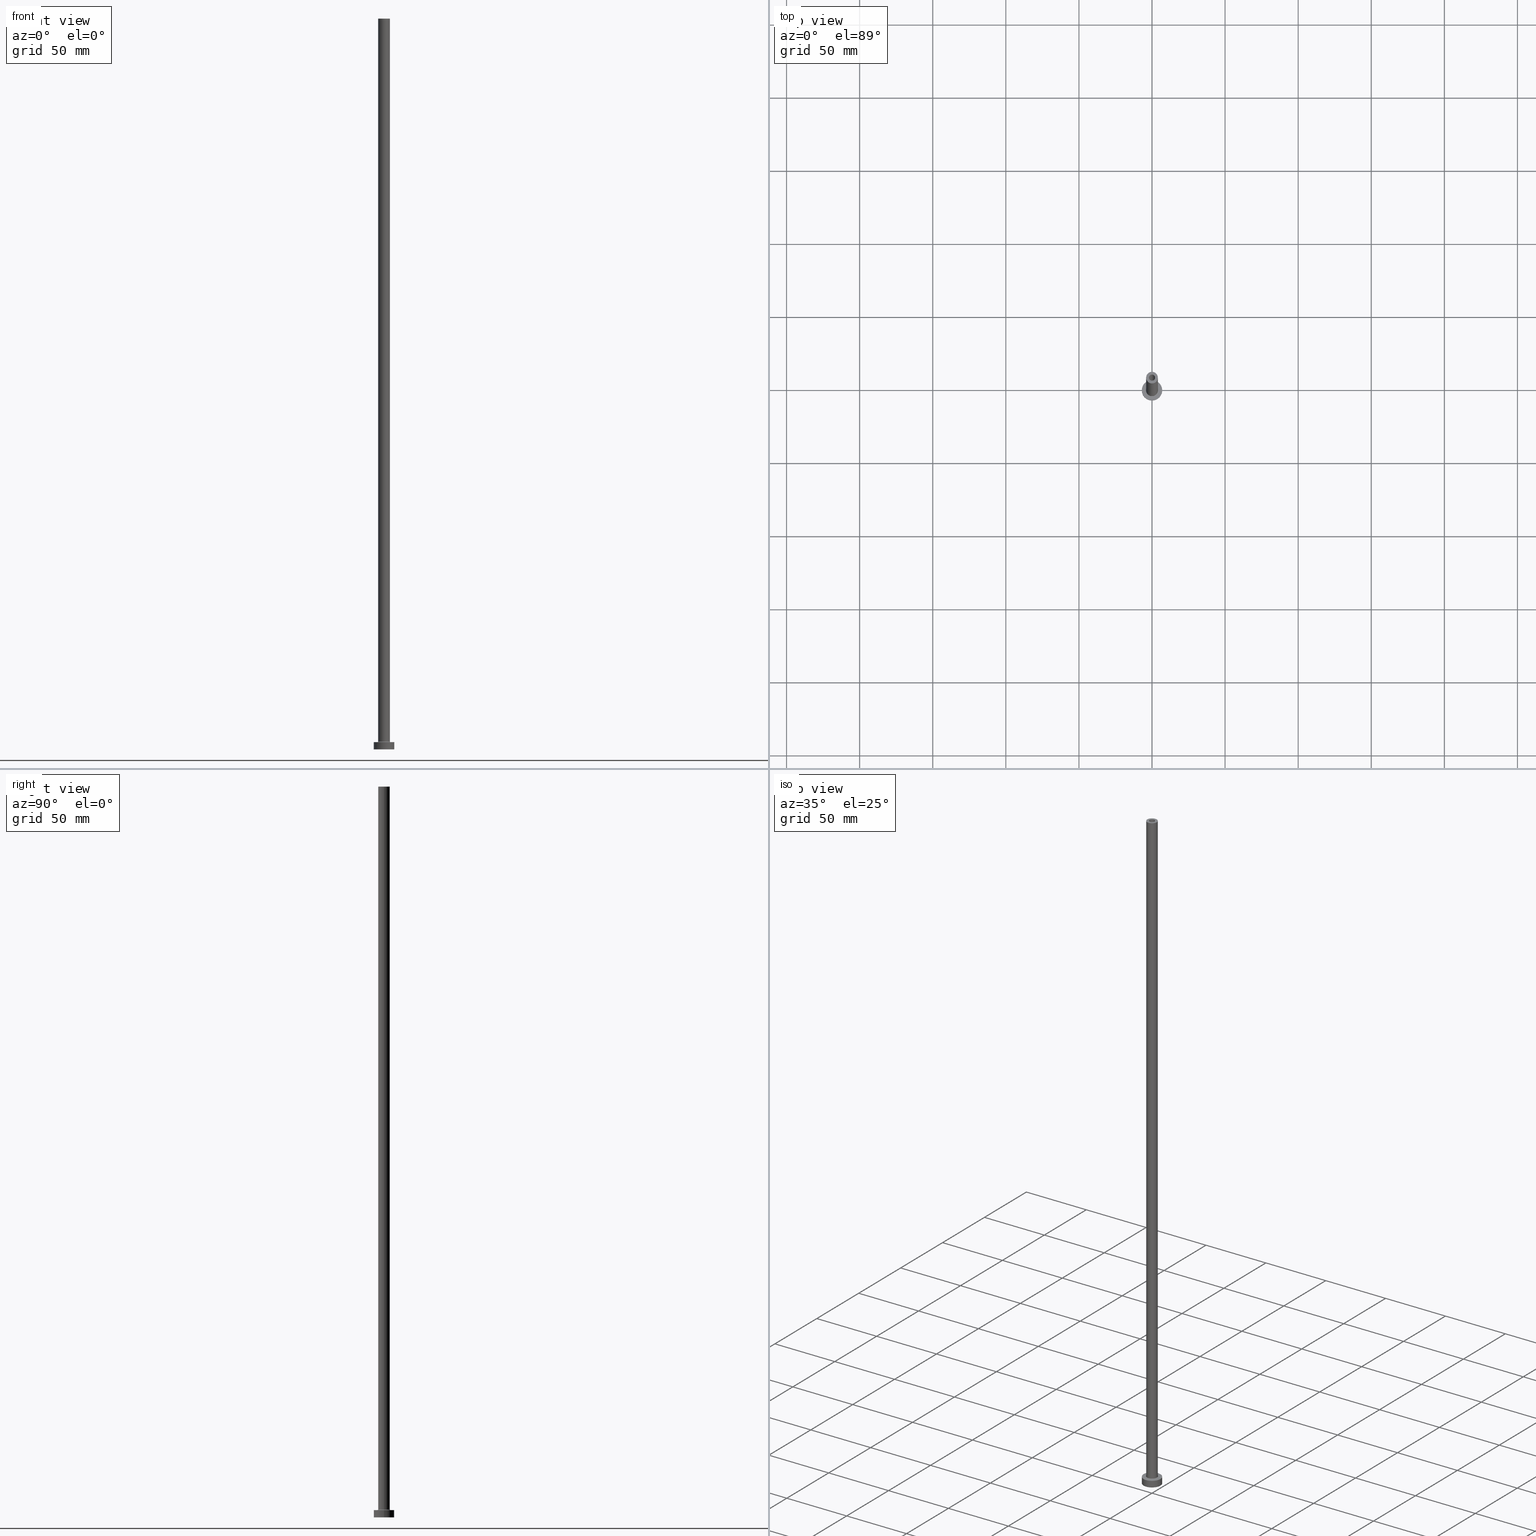
[diagram: canonical four-view strip — front | top / right | iso, engineering-drawing reading convention]
A machine part, canonical four-view strip (front | top / right | iso — engineering-drawing reading convention). The complete STEP part file that produces these views, byte-faithful:
ISO-10303-21;
HEADER;
FILE_DESCRIPTION (( 'STEP AP203' ),
    '1' );
FILE_NAME ('7f9c.STEP',
    '2023-02-13T17:30:37',
    ( '' ),
    ( '' ),
    'SwSTEP 2.0',
    'SolidWorks 2019',
    '' );
FILE_SCHEMA (( 'CONFIG_CONTROL_DESIGN' ));
ENDSEC;

DATA;
#1 = ORIENTED_EDGE ( 'NONE', *, *, #434, .T. ) ;
#2 = ORIENTED_EDGE ( 'NONE', *, *, #376, .T. ) ;
#3 = CIRCLE ( 'NONE', #222, 2.100000000000000089 ) ;
#4 = CARTESIAN_POINT ( 'NONE',  ( 0.000000000000000000, 0.000000000000000000, 500.0000000000000000 ) ) ;
#5 = LINE ( 'NONE', #150, #145 ) ;
#6 = ORIENTED_EDGE ( 'NONE', *, *, #351, .T. ) ;
#7 = DATE_AND_TIME ( #109, #340 ) ;
#8 = ADVANCED_FACE ( 'NONE', ( #38 ), #97, .F. ) ;
#9 = AXIS2_PLACEMENT_3D ( 'NONE', #298, #164, #301 ) ;
#10 = FACE_OUTER_BOUND ( 'NONE', #316, .T. ) ;
#11 = CIRCLE ( 'NONE', #80, 2.250000000000000000 ) ;
#12 = UNCERTAINTY_MEASURE_WITH_UNIT (LENGTH_MEASURE( 1.000000000000000082E-05 ), #57, 'distance_accuracy_value', 'NONE');
#13 = DIRECTION ( 'NONE',  ( 1.000000000000000000, 0.000000000000000000, -0.000000000000000000 ) ) ;
#14 = EDGE_CURVE ( 'NONE', #32, #75, #3, .T. ) ;
#15 = DIRECTION ( 'NONE',  ( -1.000000000000000000, 0.000000000000000000, 0.000000000000000000 ) ) ;
#16 = CARTESIAN_POINT ( 'NONE',  ( 0.000000000000000000, 0.000000000000000000, 5.000000000000000000 ) ) ;
#17 = CARTESIAN_POINT ( 'NONE',  ( 0.000000000000000000, 0.000000000000000000, 500.0000000000000000 ) ) ;
#18 = CIRCLE ( 'NONE', #105, 7.000000000000000000 ) ;
#19 = CARTESIAN_POINT ( 'NONE',  ( 0.000000000000000000, 0.000000000000000000, 455.0000000000000000 ) ) ;
#20 = CARTESIAN_POINT ( 'NONE',  ( 0.000000000000000000, 0.000000000000000000, 5.000000000000000000 ) ) ;
#21 = VERTEX_POINT ( 'NONE', #214 ) ;
#22 = DIRECTION ( 'NONE',  ( -0.000000000000000000, -0.000000000000000000, -1.000000000000000000 ) ) ;
#23 = PERSON_AND_ORGANIZATION_ROLE ( 'design_supplier' ) ;
#24 = CC_DESIGN_PERSON_AND_ORGANIZATION_ASSIGNMENT ( #42, #331, ( #102 ) ) ;
#25 = CARTESIAN_POINT ( 'NONE',  ( 0.000000000000000000, 0.000000000000000000, 500.0000000000000000 ) ) ;
#26 = DIRECTION ( 'NONE',  ( 1.000000000000000000, 0.000000000000000000, 0.000000000000000000 ) ) ;
#27 = ORIENTED_EDGE ( 'NONE', *, *, #450, .F. ) ;
#28 = AXIS2_PLACEMENT_3D ( 'NONE', #130, #344, #121 ) ;
#29 = CARTESIAN_POINT ( 'NONE',  ( 7.000000000000000000, 8.572527594031473190E-16, 5.000000000000000000 ) ) ;
#30 = EDGE_LOOP ( 'NONE', ( #133, #178, #136, #363 ) ) ;
#31 = DIRECTION ( 'NONE',  ( 0.000000000000000000, 0.000000000000000000, -1.000000000000000000 ) ) ;
#32 = VERTEX_POINT ( 'NONE', #408 ) ;
#33 = DIRECTION ( 'NONE',  ( -0.000000000000000000, -0.000000000000000000, -1.000000000000000000 ) ) ;
#34 = AXIS2_PLACEMENT_3D ( 'NONE', #368, #81, #329 ) ;
#35 = VERTEX_POINT ( 'NONE', #336 ) ;
#36 = DIRECTION ( 'NONE',  ( 1.000000000000000000, 0.000000000000000000, -0.000000000000000000 ) ) ;
#37 = EDGE_LOOP ( 'NONE', ( #394, #360, #6, #424 ) ) ;
#38 = FACE_OUTER_BOUND ( 'NONE', #275, .T. ) ;
#39 = CARTESIAN_POINT ( 'NONE',  ( 0.000000000000000000, 0.000000000000000000, 0.000000000000000000 ) ) ;
#40 = ADVANCED_FACE ( 'NONE', ( #257, #10 ), #82, .F. ) ;
#41 = EDGE_LOOP ( 'NONE', ( #165, #67, #358, #455 ) ) ;
#42 = PERSON_AND_ORGANIZATION ( #390, #288 ) ;
#43 = EDGE_CURVE ( 'NONE', #32, #432, #297, .T. ) ;
#44 = DATE_AND_TIME ( #436, #294 ) ;
#45 = VECTOR ( 'NONE', #277, 1000.000000000000000 ) ;
#46 = AXIS2_PLACEMENT_3D ( 'NONE', #237, #415, #91 ) ;
#47 = DIRECTION ( 'NONE',  ( 0.000000000000000000, 0.000000000000000000, 1.000000000000000000 ) ) ;
#48 = AXIS2_PLACEMENT_3D ( 'NONE', #274, #66, #139 ) ;
#49 = CARTESIAN_POINT ( 'NONE',  ( 2.100000000000000089, 2.571758278209441464E-16, 500.0000000000000000 ) ) ;
#50 = ORIENTED_EDGE ( 'NONE', *, *, #314, .T. ) ;
#51 = SECURITY_CLASSIFICATION_LEVEL ( 'unclassified' ) ;
#52 = CARTESIAN_POINT ( 'NONE',  ( 4.500000000000000888, 0.000000000000000000, 5.000000000000002665 ) ) ;
#53 = CALENDAR_DATE ( 2023, 13, 2 ) ;
#54 = VECTOR ( 'NONE', #262, 1000.000000000000000 ) ;
#55 = CARTESIAN_POINT ( 'NONE',  ( 0.000000000000000000, 0.000000000000000000, 5.500000000000005329 ) ) ;
#56 = VECTOR ( 'NONE', #88, 1000.000000000000000 ) ;
#57 =( LENGTH_UNIT ( ) NAMED_UNIT ( * ) SI_UNIT ( .MILLI., .METRE. ) );
#58 = DIRECTION ( 'NONE',  ( 1.000000000000000000, 0.000000000000000000, 0.000000000000000000 ) ) ;
#59 = ORIENTED_EDGE ( 'NONE', *, *, #225, .F. ) ;
#60 = EDGE_CURVE ( 'NONE', #398, #432, #111, .T. ) ;
#61 = CARTESIAN_POINT ( 'NONE',  ( 2.250000000000000000, 2.755455298081544285E-16, 461.3639610306789223 ) ) ;
#62 = CARTESIAN_POINT ( 'NONE',  ( 2.250000000000000000, 2.755455298081544285E-16, 0.000000000000000000 ) ) ;
#63 = CARTESIAN_POINT ( 'NONE',  ( 4.000000000000000000, 4.898587196589412829E-16, 500.0000000000000000 ) ) ;
#64 = CIRCLE ( 'NONE', #433, 7.000000000000000000 ) ;
#65 =( NAMED_UNIT ( * ) SI_UNIT ( $, .STERADIAN. ) SOLID_ANGLE_UNIT ( ) );
#66 = DIRECTION ( 'NONE',  ( -0.000000000000000000, -0.000000000000000000, -1.000000000000000000 ) ) ;
#67 = ORIENTED_EDGE ( 'NONE', *, *, #305, .T. ) ;
#68 = DIRECTION ( 'NONE',  ( 1.000000000000000000, 0.000000000000000000, 0.000000000000000000 ) ) ;
#69 = DIRECTION ( 'NONE',  ( 1.000000000000000000, 0.000000000000000000, 0.000000000000000000 ) ) ;
#70 = DIRECTION ( 'NONE',  ( 0.000000000000000000, 0.000000000000000000, 1.000000000000000000 ) ) ;
#71 = EDGE_LOOP ( 'NONE', ( #95, #361, #211, #403 ) ) ;
#72 = ORIENTED_EDGE ( 'NONE', *, *, #434, .F. ) ;
#73 = CC_DESIGN_APPROVAL ( #438, ( #102 ) ) ;
#74 = CARTESIAN_POINT ( 'NONE',  ( 0.000000000000000000, 0.000000000000000000, 461.3639610306789223 ) ) ;
#75 = VERTEX_POINT ( 'NONE', #49 ) ;
#76 = EDGE_CURVE ( 'NONE', #345, #391, #198, .T. ) ;
#77 = ORIENTED_EDGE ( 'NONE', *, *, #76, .T. ) ;
#78 = APPROVAL_ROLE ( '' ) ;
#79 = EDGE_CURVE ( 'NONE', #75, #398, #5, .T. ) ;
#80 = AXIS2_PLACEMENT_3D ( 'NONE', #380, #273, #271 ) ;
#81 = DIRECTION ( 'NONE',  ( 0.000000000000000000, 0.000000000000000000, 1.000000000000000000 ) ) ;
#82 = PLANE ( 'NONE',  #256 ) ;
#83 = LOCAL_TIME ( 18, 30, 37.00000000000000000, #221 ) ;
#84 = FACE_OUTER_BOUND ( 'NONE', #71, .T. ) ;
#85 = DIRECTION ( 'NONE',  ( 0.000000000000000000, -1.000000000000000000, 0.000000000000000000 ) ) ;
#86 = CARTESIAN_POINT ( 'NONE',  ( 0.000000000000000000, 0.000000000000000000, 0.000000000000000000 ) ) ;
#87 = EDGE_CURVE ( 'NONE', #21, #243, #153, .T. ) ;
#88 = DIRECTION ( 'NONE',  ( -0.000000000000000000, -0.000000000000000000, -1.000000000000000000 ) ) ;
#89 = DIRECTION ( 'NONE',  ( 1.000000000000000000, 0.000000000000000000, 0.000000000000000000 ) ) ;
#90 = DIRECTION ( 'NONE',  ( 0.000000000000000000, 0.000000000000000000, 1.000000000000000000 ) ) ;
#91 = DIRECTION ( 'NONE',  ( -1.000000000000000000, 0.000000000000000000, 0.000000000000000000 ) ) ;
#92 = ORIENTED_EDGE ( 'NONE', *, *, #60, .F. ) ;
#93 = DIRECTION ( 'NONE',  ( 0.000000000000000000, 0.000000000000000000, -1.000000000000000000 ) ) ;
#94 = CARTESIAN_POINT ( 'NONE',  ( -4.000000000000000000, 0.000000000000000000, 500.0000000000000000 ) ) ;
#95 = ORIENTED_EDGE ( 'NONE', *, *, #291, .F. ) ;
#96 = PLANE ( 'NONE',  #359 ) ;
#97 = CYLINDRICAL_SURFACE ( 'NONE', #422, 2.100000000000000089 ) ;
#98 = FACE_OUTER_BOUND ( 'NONE', #411, .T. ) ;
#99 = ORIENTED_EDGE ( 'NONE', *, *, #396, .F. ) ;
#100 = ADVANCED_BREP_SHAPE_REPRESENTATION ( '7f9c', ( #292, #406 ), #106 ) ;
#101 = CARTESIAN_POINT ( 'NONE',  ( 0.000000000000000000, 0.000000000000000000, 500.0000000000000000 ) ) ;
#102 = PRODUCT_DEFINITION ( 'NEZN�M�', '', #371, #208 ) ;
#103 = EDGE_LOOP ( 'NONE', ( #364, #355 ) ) ;
#104 = ORIENTED_EDGE ( 'NONE', *, *, #60, .T. ) ;
#105 = AXIS2_PLACEMENT_3D ( 'NONE', #16, #267, #375 ) ;
#106 =( GEOMETRIC_REPRESENTATION_CONTEXT ( 3 ) GLOBAL_UNCERTAINTY_ASSIGNED_CONTEXT ( ( #12 ) ) GLOBAL_UNIT_ASSIGNED_CONTEXT ( ( #57, #202, #65 ) ) REPRESENTATION_CONTEXT ( 'NONE', 'WORKASPACE' ) );
#107 = ORIENTED_EDGE ( 'NONE', *, *, #412, .T. ) ;
#108 = EDGE_LOOP ( 'NONE', ( #72, #321, #59, #176 ) ) ;
#109 = CALENDAR_DATE ( 2023, 13, 2 ) ;
#110 = APPROVAL ( #158, 'NEUR�EN�' ) ;
#111 = CIRCLE ( 'NONE', #285, 2.100000000000000089 ) ;
#112 = APPROVAL_ROLE ( '' ) ;
#113 = AXIS2_PLACEMENT_3D ( 'NONE', #240, #272, #384 ) ;
#114 = PERSON_AND_ORGANIZATION ( #390, #288 ) ;
#115 = EDGE_CURVE ( 'NONE', #179, #326, #457, .T. ) ;
#116 = AXIS2_PLACEMENT_3D ( 'NONE', #337, #85, #171 ) ;
#117 = AXIS2_PLACEMENT_3D ( 'NONE', #284, #318, #354 ) ;
#118 = CC_DESIGN_APPROVAL ( #110, ( #128 ) ) ;
#119 = CYLINDRICAL_SURFACE ( 'NONE', #416, 7.000000000000000000 ) ;
#120 = CALENDAR_DATE ( 2023, 13, 2 ) ;
#121 = DIRECTION ( 'NONE',  ( 1.000000000000000000, 0.000000000000000000, 0.000000000000000000 ) ) ;
#122 = FACE_OUTER_BOUND ( 'NONE', #249, .T. ) ;
#123 = ADVANCED_FACE ( 'NONE', ( #309 ), #446, .F. ) ;
#124 = FACE_BOUND ( 'NONE', #402, .T. ) ;
#125 = CARTESIAN_POINT ( 'NONE',  ( 0.000000000000000000, 0.000000000000000000, 5.000000000000000000 ) ) ;
#126 = AXIS2_PLACEMENT_3D ( 'NONE', #185, #322, #353 ) ;
#127 = ORIENTED_EDGE ( 'NONE', *, *, #225, .T. ) ;
#128 = SECURITY_CLASSIFICATION ( '', '', #51 ) ;
#129 = DATE_AND_TIME ( #120, #401 ) ;
#130 = CARTESIAN_POINT ( 'NONE',  ( 0.000000000000000000, 0.000000000000000000, 0.000000000000000000 ) ) ;
#131 = CARTESIAN_POINT ( 'NONE',  ( -2.250000000000000000, 0.000000000000000000, 455.0000000000000000 ) ) ;
#132 = ADVANCED_FACE ( 'NONE', ( #381 ), #119, .T. ) ;
#133 = ORIENTED_EDGE ( 'NONE', *, *, #76, .F. ) ;
#134 = APPROVAL_DATE_TIME ( #162, #110 ) ;
#135 = CARTESIAN_POINT ( 'NONE',  ( 0.000000000000000000, 0.000000000000000000, 455.0000000000000000 ) ) ;
#136 = ORIENTED_EDGE ( 'NONE', *, *, #396, .T. ) ;
#137 = FACE_OUTER_BOUND ( 'NONE', #327, .T. ) ;
#138 = ORIENTED_EDGE ( 'NONE', *, *, #362, .T. ) ;
#139 = DIRECTION ( 'NONE',  ( 1.000000000000000000, 0.000000000000000000, 0.000000000000000000 ) ) ;
#140 = EDGE_LOOP ( 'NONE', ( #386, #174, #348, #1 ) ) ;
#141 = ADVANCED_FACE ( 'NONE', ( #167 ), #370, .F. ) ;
#142 = CYLINDRICAL_SURFACE ( 'NONE', #117, 4.000000000000000000 ) ;
#143 = ORIENTED_EDGE ( 'NONE', *, *, #286, .F. ) ;
#144 = VERTEX_POINT ( 'NONE', #264 ) ;
#145 = VECTOR ( 'NONE', #383, 1000.000000000000000 ) ;
#146 = ORIENTED_EDGE ( 'NONE', *, *, #351, .F. ) ;
#147 = ORIENTED_EDGE ( 'NONE', *, *, #404, .F. ) ;
#148 = AXIS2_PLACEMENT_3D ( 'NONE', #431, #70, #36 ) ;
#149 = APPROVAL_PERSON_ORGANIZATION ( #405, #325, #78 ) ;
#150 = CARTESIAN_POINT ( 'NONE',  ( 2.100000000000000089, 2.571758278209441464E-16, 500.0000000000000000 ) ) ;
#151 = CARTESIAN_POINT ( 'NONE',  ( -2.100000000000000089, 0.000000000000000000, 500.0000000000000000 ) ) ;
#152 = PERSON_AND_ORGANIZATION ( #390, #288 ) ;
#153 = CIRCLE ( 'NONE', #116, 0.5000000000000004441 ) ;
#154 = APPROVAL_DATE_TIME ( #44, #325 ) ;
#155 = AXIS2_PLACEMENT_3D ( 'NONE', #453, #166, #300 ) ;
#156 = ADVANCED_FACE ( 'NONE', ( #304 ), #445, .T. ) ;
#157 = CYLINDRICAL_SURFACE ( 'NONE', #9, 2.250000000000000000 ) ;
#158 = APPROVAL_STATUS ( 'not_yet_approved' ) ;
#159 = CARTESIAN_POINT ( 'NONE',  ( -7.000000000000000000, 0.000000000000000000, 5.000000000000000000 ) ) ;
#160 = CIRCLE ( 'NONE', #155, 4.000000000000000000 ) ;
#161 = DIRECTION ( 'NONE',  ( 0.000000000000000000, 0.000000000000000000, 1.000000000000000000 ) ) ;
#162 = DATE_AND_TIME ( #53, #330 ) ;
#163 = CARTESIAN_POINT ( 'NONE',  ( 0.000000000000000000, 0.000000000000000000, 0.000000000000000000 ) ) ;
#164 = DIRECTION ( 'NONE',  ( 0.000000000000000000, 0.000000000000000000, -1.000000000000000000 ) ) ;
#165 = ORIENTED_EDGE ( 'NONE', *, *, #115, .F. ) ;
#166 = DIRECTION ( 'NONE',  ( 0.000000000000000000, 0.000000000000000000, 1.000000000000000000 ) ) ;
#167 = FACE_OUTER_BOUND ( 'NONE', #108, .T. ) ;
#168 = VERTEX_POINT ( 'NONE', #62 ) ;
#169 = PERSON_AND_ORGANIZATION_ROLE ( 'classification_officer' ) ;
#170 = DIRECTION ( 'NONE',  ( -1.000000000000000000, 0.000000000000000000, 0.000000000000000000 ) ) ;
#171 = DIRECTION ( 'NONE',  ( 0.000000000000000000, 0.000000000000000000, -1.000000000000000000 ) ) ;
#172 = AXIS2_PLACEMENT_3D ( 'NONE', #177, #429, #68 ) ;
#173 = DATE_TIME_ROLE ( 'classification_date' ) ;
#174 = ORIENTED_EDGE ( 'NONE', *, *, #412, .F. ) ;
#175 = CARTESIAN_POINT ( 'NONE',  ( -4.000000000000000000, 0.000000000000000000, 500.0000000000000000 ) ) ;
#176 = ORIENTED_EDGE ( 'NONE', *, *, #87, .F. ) ;
#177 = CARTESIAN_POINT ( 'NONE',  ( 0.000000000000000000, 0.000000000000000000, 5.500000000000005329 ) ) ;
#178 = ORIENTED_EDGE ( 'NONE', *, *, #291, .T. ) ;
#179 = VERTEX_POINT ( 'NONE', #233 ) ;
#180 = APPLICATION_PROTOCOL_DEFINITION ( 'international standard', 'config_control_design', 1994, #232 ) ;
#181 = DIRECTION ( 'NONE',  ( 0.000000000000000000, 0.000000000000000000, -1.000000000000000000 ) ) ;
#182 = ORIENTED_EDGE ( 'NONE', *, *, #115, .T. ) ;
#183 = ADVANCED_FACE ( 'NONE', ( #84 ), #410, .T. ) ;
#184 = APPROVAL_PERSON_ORGANIZATION ( #261, #438, #112 ) ;
#185 = CARTESIAN_POINT ( 'NONE',  ( -4.500000000000000888, 5.510910596163089556E-16, 5.500000000000005329 ) ) ;
#186 = ORIENTED_EDGE ( 'NONE', *, *, #196, .F. ) ;
#187 = DIRECTION ( 'NONE',  ( 0.000000000000000000, 0.000000000000000000, -1.000000000000000000 ) ) ;
#188 = CC_DESIGN_PERSON_AND_ORGANIZATION_ASSIGNMENT ( #293, #437, ( #371 ) ) ;
#189 = VERTEX_POINT ( 'NONE', #131 ) ;
#190 = COORDINATED_UNIVERSAL_TIME_OFFSET ( 1, 0, .AHEAD. ) ;
#191 = CIRCLE ( 'NONE', #224, 2.250000000000000000 ) ;
#192 = EDGE_CURVE ( 'NONE', #391, #144, #419, .T. ) ;
#193 = AXIS2_PLACEMENT_3D ( 'NONE', #135, #456, #245 ) ;
#194 = CC_DESIGN_APPROVAL ( #325, ( #371 ) ) ;
#195 = FACE_OUTER_BOUND ( 'NONE', #37, .T. ) ;
#196 = EDGE_CURVE ( 'NONE', #430, #243, #319, .T. ) ;
#197 = FACE_BOUND ( 'NONE', #103, .T. ) ;
#198 = CIRCLE ( 'NONE', #34, 7.000000000000000000 ) ;
#199 = CARTESIAN_POINT ( 'NONE',  ( 2.100000000000000089, 2.571758278209441464E-16, 455.0000000000000000 ) ) ;
#200 = CIRCLE ( 'NONE', #218, 2.250000000000000000 ) ;
#201 = CARTESIAN_POINT ( 'NONE',  ( 7.000000000000000000, 8.572527594031473190E-16, 0.000000000000000000 ) ) ;
#202 =( NAMED_UNIT ( * ) PLANE_ANGLE_UNIT ( ) SI_UNIT ( $, .RADIAN. ) );
#203 = ORIENTED_EDGE ( 'NONE', *, *, #79, .T. ) ;
#204 = DIRECTION ( 'NONE',  ( 1.000000000000000000, 0.000000000000000000, 0.000000000000000000 ) ) ;
#205 = CARTESIAN_POINT ( 'NONE',  ( -7.000000000000000000, 0.000000000000000000, 5.000000000000000000 ) ) ;
#206 = CC_DESIGN_PERSON_AND_ORGANIZATION_ASSIGNMENT ( #347, #169, ( #128 ) ) ;
#207 = DIRECTION ( 'NONE',  ( 1.000000000000000000, 0.000000000000000000, 0.000000000000000000 ) ) ;
#208 = DESIGN_CONTEXT ( 'detailed design', #311, 'design' ) ;
#209 = CARTESIAN_POINT ( 'NONE',  ( -2.250000000000000000, 0.000000000000000000, 461.3639610306789223 ) ) ;
#210 = ORIENTED_EDGE ( 'NONE', *, *, #87, .T. ) ;
#211 = ORIENTED_EDGE ( 'NONE', *, *, #192, .T. ) ;
#212 = FACE_BOUND ( 'NONE', #219, .T. ) ;
#213 = ADVANCED_FACE ( 'NONE', ( #195 ), #157, .F. ) ;
#214 = CARTESIAN_POINT ( 'NONE',  ( 4.000000000000000000, 4.898587196589412829E-16, 5.500000000000005329 ) ) ;
#215 = PRODUCT_DEFINITION_SHAPE ( 'NONE', 'NONE',  #102 ) ;
#216 = CARTESIAN_POINT ( 'NONE',  ( 0.000000000000000000, 0.000000000000000000, 500.0000000000000000 ) ) ;
#217 = VERTEX_POINT ( 'NONE', #231 ) ;
#218 = AXIS2_PLACEMENT_3D ( 'NONE', #19, #382, #418 ) ;
#219 = EDGE_LOOP ( 'NONE', ( #127, #426 ) ) ;
#220 = ORIENTED_EDGE ( 'NONE', *, *, #407, .F. ) ;
#221 = COORDINATED_UNIVERSAL_TIME_OFFSET ( 1, 0, .AHEAD. ) ;
#222 = AXIS2_PLACEMENT_3D ( 'NONE', #4, #393, #69 ) ;
#223 = COORDINATED_UNIVERSAL_TIME_OFFSET ( 1, 0, .AHEAD. ) ;
#224 = AXIS2_PLACEMENT_3D ( 'NONE', #86, #239, #204 ) ;
#225 = EDGE_CURVE ( 'NONE', #243, #430, #350, .T. ) ;
#226 = CARTESIAN_POINT ( 'NONE',  ( 0.000000000000000000, 0.000000000000000000, 0.000000000000000000 ) ) ;
#227 = APPROVAL_STATUS ( 'not_yet_approved' ) ;
#228 = VECTOR ( 'NONE', #236, 1000.000000000000000 ) ;
#229 = CARTESIAN_POINT ( 'NONE',  ( 0.000000000000000000, 0.000000000000000000, 455.0000000000000000 ) ) ;
#230 = PRODUCT_RELATED_PRODUCT_CATEGORY ( 'detail', '', ( #283 ) ) ;
#231 = CARTESIAN_POINT ( 'NONE',  ( -2.250000000000000000, 0.000000000000000000, 0.000000000000000000 ) ) ;
#232 = APPLICATION_CONTEXT ( 'configuration controlled 3d designs of mechanical parts and assemblies' ) ;
#233 = CARTESIAN_POINT ( 'NONE',  ( 4.000000000000000000, 4.898587196589412829E-16, 500.0000000000000000 ) ) ;
#234 = CLOSED_SHELL ( 'NONE', ( #8, #213, #141, #296, #132, #183, #372, #40, #156, #259, #123, #343, #263, #428 ) ) ;
#235 = DIRECTION ( 'NONE',  ( 0.000000000000000000, 0.000000000000000000, 1.000000000000000000 ) ) ;
#236 = DIRECTION ( 'NONE',  ( 0.000000000000000000, 0.000000000000000000, -1.000000000000000000 ) ) ;
#237 = CARTESIAN_POINT ( 'NONE',  ( 0.000000000000000000, 0.000000000000000000, 500.0000000000000000 ) ) ;
#238 = CC_DESIGN_PERSON_AND_ORGANIZATION_ASSIGNMENT ( #114, #23, ( #371 ) ) ;
#239 = DIRECTION ( 'NONE',  ( -0.000000000000000000, -0.000000000000000000, -1.000000000000000000 ) ) ;
#240 = CARTESIAN_POINT ( 'NONE',  ( 0.000000000000000000, 0.000000000000000000, 5.000000000000000000 ) ) ;
#241 = LINE ( 'NONE', #63, #299 ) ;
#242 = VECTOR ( 'NONE', #33, 1000.000000000000000 ) ;
#243 = VERTEX_POINT ( 'NONE', #52 ) ;
#244 = CC_DESIGN_DATE_AND_TIME_ASSIGNMENT ( #7, #255, ( #102 ) ) ;
#245 = DIRECTION ( 'NONE',  ( 1.000000000000000000, 0.000000000000000000, 0.000000000000000000 ) ) ;
#246 = DIRECTION ( 'NONE',  ( -1.000000000000000000, 0.000000000000000000, 0.000000000000000000 ) ) ;
#247 = EDGE_LOOP ( 'NONE', ( #289, #50, #397, #92 ) ) ;
#248 = FACE_OUTER_BOUND ( 'NONE', #338, .T. ) ;
#249 = EDGE_LOOP ( 'NONE', ( #107, #182 ) ) ;
#250 = LINE ( 'NONE', #94, #242 ) ;
#251 = VERTEX_POINT ( 'NONE', #201 ) ;
#252 = VECTOR ( 'NONE', #31, 1000.000000000000000 ) ;
#253 = ORIENTED_EDGE ( 'NONE', *, *, #404, .T. ) ;
#254 = DIRECTION ( 'NONE',  ( 0.000000000000000000, 0.000000000000000000, 1.000000000000000000 ) ) ;
#255 = DATE_TIME_ROLE ( 'creation_date' ) ;
#256 = AXIS2_PLACEMENT_3D ( 'NONE', #226, #47, #13 ) ;
#257 = FACE_BOUND ( 'NONE', #287, .T. ) ;
#258 = CIRCLE ( 'NONE', #379, 4.000000000000000000 ) ;
#259 = ADVANCED_FACE ( 'NONE', ( #197, #122 ), #339, .T. ) ;
#260 = APPROVAL_STATUS ( 'not_yet_approved' ) ;
#261 = PERSON_AND_ORGANIZATION ( #390, #288 ) ;
#262 = DIRECTION ( 'NONE',  ( 0.000000000000000000, 0.000000000000000000, -1.000000000000000000 ) ) ;
#263 = ADVANCED_FACE ( 'NONE', ( #124, #137 ), #395, .F. ) ;
#264 = CARTESIAN_POINT ( 'NONE',  ( -7.000000000000000000, 0.000000000000000000, 0.000000000000000000 ) ) ;
#265 = CARTESIAN_POINT ( 'NONE',  ( 0.000000000000000000, 0.000000000000000000, 5.500000000000005329 ) ) ;
#266 = AXIS2_PLACEMENT_3D ( 'NONE', #270, #235, #26 ) ;
#267 = DIRECTION ( 'NONE',  ( 0.000000000000000000, 0.000000000000000000, 1.000000000000000000 ) ) ;
#268 = AXIS2_PLACEMENT_3D ( 'NONE', #20, #342, #15 ) ;
#269 = CC_DESIGN_PERSON_AND_ORGANIZATION_ASSIGNMENT ( #152, #295, ( #283 ) ) ;
#270 = CARTESIAN_POINT ( 'NONE',  ( 0.000000000000000000, 0.000000000000000000, 500.0000000000000000 ) ) ;
#271 = DIRECTION ( 'NONE',  ( 1.000000000000000000, 0.000000000000000000, 0.000000000000000000 ) ) ;
#272 = DIRECTION ( 'NONE',  ( -0.000000000000000000, -0.000000000000000000, -1.000000000000000000 ) ) ;
#273 = DIRECTION ( 'NONE',  ( 0.000000000000000000, 0.000000000000000000, 1.000000000000000000 ) ) ;
#274 = CARTESIAN_POINT ( 'NONE',  ( 0.000000000000000000, 0.000000000000000000, 0.000000000000000000 ) ) ;
#275 = EDGE_LOOP ( 'NONE', ( #459, #203, #143, #323 ) ) ;
#276 = EDGE_CURVE ( 'NONE', #35, #430, #328, .T. ) ;
#277 = DIRECTION ( 'NONE',  ( -0.000000000000000000, -0.000000000000000000, -1.000000000000000000 ) ) ;
#278 = AXIS2_PLACEMENT_3D ( 'NONE', #74, #181, #313 ) ;
#279 = VERTEX_POINT ( 'NONE', #392 ) ;
#280 = DIRECTION ( 'NONE',  ( 1.000000000000000000, 0.000000000000000000, 0.000000000000000000 ) ) ;
#281 = DIRECTION ( 'NONE',  ( 0.000000000000000000, 0.000000000000000000, 1.000000000000000000 ) ) ;
#282 = ORIENTED_EDGE ( 'NONE', *, *, #441, .F. ) ;
#283 = PRODUCT ( '7f9c', '7f9c', '', ( #427 ) ) ;
#284 = CARTESIAN_POINT ( 'NONE',  ( 0.000000000000000000, 0.000000000000000000, 500.0000000000000000 ) ) ;
#285 = AXIS2_PLACEMENT_3D ( 'NONE', #229, #254, #333 ) ;
#286 = EDGE_CURVE ( 'NONE', #432, #398, #400, .T. ) ;
#287 = EDGE_LOOP ( 'NONE', ( #147, #146 ) ) ;
#288 = ORGANIZATION ( 'NEUR�EN�', 'NEUR�EN�', '' ) ;
#289 = ORIENTED_EDGE ( 'NONE', *, *, #79, .F. ) ;
#290 = DATE_AND_TIME ( #365, #83 ) ;
#291 = EDGE_CURVE ( 'NONE', #345, #251, #315, .T. ) ;
#292 = MANIFOLD_SOLID_BREP ( 'Odebrat vysunut�m4', #234 ) ;
#293 = PERSON_AND_ORGANIZATION ( #390, #288 ) ;
#294 = LOCAL_TIME ( 18, 30, 37.00000000000000000, #223 ) ;
#295 = PERSON_AND_ORGANIZATION_ROLE ( 'design_owner' ) ;
#296 = ADVANCED_FACE ( 'NONE', ( #461 ), #142, .T. ) ;
#297 = LINE ( 'NONE', #151, #54 ) ;
#298 = CARTESIAN_POINT ( 'NONE',  ( 0.000000000000000000, 0.000000000000000000, 461.3639610306789223 ) ) ;
#299 = VECTOR ( 'NONE', #389, 1000.000000000000000 ) ;
#300 = DIRECTION ( 'NONE',  ( 1.000000000000000000, 0.000000000000000000, 0.000000000000000000 ) ) ;
#301 = DIRECTION ( 'NONE',  ( -1.000000000000000000, 0.000000000000000000, 0.000000000000000000 ) ) ;
#302 = COORDINATED_UNIVERSAL_TIME_OFFSET ( 1, 0, .AHEAD. ) ;
#303 = DIRECTION ( 'NONE',  ( 0.000000000000000000, 0.000000000000000000, 1.000000000000000000 ) ) ;
#304 = FACE_OUTER_BOUND ( 'NONE', #140, .T. ) ;
#305 = EDGE_CURVE ( 'NONE', #179, #21, #241, .T. ) ;
#306 = CARTESIAN_POINT ( 'NONE',  ( 0.000000000000000000, 0.000000000000000000, 500.0000000000000000 ) ) ;
#307 = CARTESIAN_POINT ( 'NONE',  ( -2.100000000000000089, 0.000000000000000000, 455.0000000000000000 ) ) ;
#308 = AXIS2_PLACEMENT_3D ( 'NONE', #25, #93, #170 ) ;
#309 = FACE_OUTER_BOUND ( 'NONE', #377, .T. ) ;
#310 = PERSON_AND_ORGANIZATION ( #390, #288 ) ;
#311 = APPLICATION_CONTEXT ( 'configuration controlled 3d designs of mechanical parts and assemblies' ) ;
#312 = DIRECTION ( 'NONE',  ( 0.000000000000000000, 0.000000000000000000, 1.000000000000000000 ) ) ;
#313 = DIRECTION ( 'NONE',  ( -1.000000000000000000, 0.000000000000000000, 0.000000000000000000 ) ) ;
#314 = EDGE_CURVE ( 'NONE', #75, #32, #388, .T. ) ;
#315 = LINE ( 'NONE', #29, #45 ) ;
#316 = EDGE_LOOP ( 'NONE', ( #324, #99 ) ) ;
#317 = ORIENTED_EDGE ( 'NONE', *, *, #276, .F. ) ;
#318 = DIRECTION ( 'NONE',  ( -0.000000000000000000, -0.000000000000000000, -1.000000000000000000 ) ) ;
#319 = CIRCLE ( 'NONE', #113, 4.500000000000000888 ) ;
#320 = APPROVAL_PERSON_ORGANIZATION ( #310, #110, #374 ) ;
#321 = ORIENTED_EDGE ( 'NONE', *, *, #276, .T. ) ;
#322 = DIRECTION ( 'NONE',  ( 1.224646799147353207E-16, 1.000000000000000000, -0.000000000000000000 ) ) ;
#323 = ORIENTED_EDGE ( 'NONE', *, *, #43, .F. ) ;
#324 = ORIENTED_EDGE ( 'NONE', *, *, #460, .F. ) ;
#325 = APPROVAL ( #260, 'NEUR�EN�' ) ;
#326 = VERTEX_POINT ( 'NONE', #175 ) ;
#327 = EDGE_LOOP ( 'NONE', ( #27, #282 ) ) ;
#328 = CIRCLE ( 'NONE', #126, 0.5000000000000004441 ) ;
#329 = DIRECTION ( 'NONE',  ( 1.000000000000000000, 0.000000000000000000, 0.000000000000000000 ) ) ;
#330 = LOCAL_TIME ( 18, 30, 37.00000000000000000, #302 ) ;
#331 = PERSON_AND_ORGANIZATION_ROLE ( 'creator' ) ;
#332 = EDGE_CURVE ( 'NONE', #326, #35, #250, .T. ) ;
#333 = DIRECTION ( 'NONE',  ( 1.000000000000000000, 0.000000000000000000, 0.000000000000000000 ) ) ;
#334 = AXIS2_PLACEMENT_3D ( 'NONE', #443, #439, #373 ) ;
#335 = CIRCLE ( 'NONE', #28, 7.000000000000000000 ) ;
#336 = CARTESIAN_POINT ( 'NONE',  ( -4.000000000000000000, 0.000000000000000000, 5.500000000000005329 ) ) ;
#337 = CARTESIAN_POINT ( 'NONE',  ( 4.500000000000000888, 0.000000000000000000, 5.500000000000005329 ) ) ;
#338 = EDGE_LOOP ( 'NONE', ( #2, #77 ) ) ;
#339 = PLANE ( 'NONE',  #367 ) ;
#340 = LOCAL_TIME ( 18, 30, 37.00000000000000000, #190 ) ;
#341 = LINE ( 'NONE', #61, #228 ) ;
#342 = DIRECTION ( 'NONE',  ( -0.000000000000000000, -0.000000000000000000, -1.000000000000000000 ) ) ;
#343 = ADVANCED_FACE ( 'NONE', ( #98 ), #399, .F. ) ;
#344 = DIRECTION ( 'NONE',  ( 0.000000000000000000, 0.000000000000000000, 1.000000000000000000 ) ) ;
#345 = VERTEX_POINT ( 'NONE', #454 ) ;
#346 = CYLINDRICAL_SURFACE ( 'NONE', #308, 2.100000000000000089 ) ;
#347 = PERSON_AND_ORGANIZATION ( #390, #288 ) ;
#348 = ORIENTED_EDGE ( 'NONE', *, *, #332, .T. ) ;
#349 = CARTESIAN_POINT ( 'NONE',  ( -4.500000000000000888, 5.510910596163088569E-16, 5.000000000000002665 ) ) ;
#350 = CIRCLE ( 'NONE', #334, 4.500000000000000888 ) ;
#351 = EDGE_CURVE ( 'NONE', #168, #217, #352, .T. ) ;
#352 = CIRCLE ( 'NONE', #48, 2.250000000000000000 ) ;
#353 = DIRECTION ( 'NONE',  ( -1.000000000000000000, 1.224646799147351482E-16, 0.000000000000000000 ) ) ;
#354 = DIRECTION ( 'NONE',  ( -1.000000000000000000, 0.000000000000000000, 0.000000000000000000 ) ) ;
#355 = ORIENTED_EDGE ( 'NONE', *, *, #314, .F. ) ;
#356 = ORIENTED_EDGE ( 'NONE', *, *, #286, .T. ) ;
#357 = CARTESIAN_POINT ( 'NONE',  ( 0.000000000000000000, 0.000000000000000000, 5.000000000000000000 ) ) ;
#358 = ORIENTED_EDGE ( 'NONE', *, *, #366, .T. ) ;
#359 = AXIS2_PLACEMENT_3D ( 'NONE', #357, #281, #413 ) ;
#360 = ORIENTED_EDGE ( 'NONE', *, *, #407, .T. ) ;
#361 = ORIENTED_EDGE ( 'NONE', *, *, #376, .F. ) ;
#362 = EDGE_CURVE ( 'NONE', #189, #217, #425, .T. ) ;
#363 = ORIENTED_EDGE ( 'NONE', *, *, #192, .F. ) ;
#364 = ORIENTED_EDGE ( 'NONE', *, *, #14, .F. ) ;
#365 = CALENDAR_DATE ( 2023, 13, 2 ) ;
#366 = EDGE_CURVE ( 'NONE', #21, #35, #417, .T. ) ;
#367 = AXIS2_PLACEMENT_3D ( 'NONE', #17, #161, #414 ) ;
#368 = CARTESIAN_POINT ( 'NONE',  ( 0.000000000000000000, 0.000000000000000000, 5.000000000000000000 ) ) ;
#369 = APPROVAL_DATE_TIME ( #290, #438 ) ;
#370 = TOROIDAL_SURFACE ( 'NONE', #378, 4.500000000000000888, 0.5000000000000000000 ) ;
#371 = PRODUCT_DEFINITION_FORMATION_WITH_SPECIFIED_SOURCE ( 'LIBOVOLN�', '', #283, .NOT_KNOWN. ) ;
#372 = ADVANCED_FACE ( 'NONE', ( #212, #248 ), #96, .T. ) ;
#373 = DIRECTION ( 'NONE',  ( 1.000000000000000000, 0.000000000000000000, 0.000000000000000000 ) ) ;
#374 = APPROVAL_ROLE ( '' ) ;
#375 = DIRECTION ( 'NONE',  ( 1.000000000000000000, 0.000000000000000000, 0.000000000000000000 ) ) ;
#376 = EDGE_CURVE ( 'NONE', #391, #345, #18, .T. ) ;
#377 = EDGE_LOOP ( 'NONE', ( #317, #448, #210, #186 ) ) ;
#378 = AXIS2_PLACEMENT_3D ( 'NONE', #55, #90, #58 ) ;
#379 = AXIS2_PLACEMENT_3D ( 'NONE', #306, #312, #89 ) ;
#380 = CARTESIAN_POINT ( 'NONE',  ( 0.000000000000000000, 0.000000000000000000, 455.0000000000000000 ) ) ;
#381 = FACE_OUTER_BOUND ( 'NONE', #30, .T. ) ;
#382 = DIRECTION ( 'NONE',  ( 0.000000000000000000, 0.000000000000000000, 1.000000000000000000 ) ) ;
#383 = DIRECTION ( 'NONE',  ( 0.000000000000000000, 0.000000000000000000, -1.000000000000000000 ) ) ;
#384 = DIRECTION ( 'NONE',  ( 1.000000000000000000, 0.000000000000000000, 0.000000000000000000 ) ) ;
#385 = AXIS2_PLACEMENT_3D ( 'NONE', #265, #420, #447 ) ;
#386 = ORIENTED_EDGE ( 'NONE', *, *, #305, .F. ) ;
#387 = FACE_OUTER_BOUND ( 'NONE', #247, .T. ) ;
#388 = CIRCLE ( 'NONE', #440, 2.100000000000000089 ) ;
#389 = DIRECTION ( 'NONE',  ( -0.000000000000000000, -0.000000000000000000, -1.000000000000000000 ) ) ;
#390 = PERSON ( 'NEUR�EN�', 'NEUR�EN�', 'NEUR�EN�', ('NEUR�EN�'), ('NEUR�EN�'), ('NEUR�EN�') ) ;
#391 = VERTEX_POINT ( 'NONE', #159 ) ;
#392 = CARTESIAN_POINT ( 'NONE',  ( 2.250000000000000000, 2.755455298081544285E-16, 455.0000000000000000 ) ) ;
#393 = DIRECTION ( 'NONE',  ( 0.000000000000000000, 0.000000000000000000, 1.000000000000000000 ) ) ;
#394 = ORIENTED_EDGE ( 'NONE', *, *, #450, .T. ) ;
#395 = PLANE ( 'NONE',  #148 ) ;
#396 = EDGE_CURVE ( 'NONE', #251, #144, #335, .T. ) ;
#397 = ORIENTED_EDGE ( 'NONE', *, *, #43, .T. ) ;
#398 = VERTEX_POINT ( 'NONE', #199 ) ;
#399 = CYLINDRICAL_SURFACE ( 'NONE', #278, 2.250000000000000000 ) ;
#400 = CIRCLE ( 'NONE', #193, 2.100000000000000089 ) ;
#401 = LOCAL_TIME ( 18, 30, 37.00000000000000000, #442 ) ;
#402 = EDGE_LOOP ( 'NONE', ( #356, #104 ) ) ;
#403 = ORIENTED_EDGE ( 'NONE', *, *, #460, .T. ) ;
#404 = EDGE_CURVE ( 'NONE', #217, #168, #191, .T. ) ;
#405 = PERSON_AND_ORGANIZATION ( #390, #288 ) ;
#406 = AXIS2_PLACEMENT_3D ( 'NONE', #39, #435, #280 ) ;
#407 = EDGE_CURVE ( 'NONE', #279, #168, #341, .T. ) ;
#408 = CARTESIAN_POINT ( 'NONE',  ( -2.100000000000000089, 0.000000000000000000, 500.0000000000000000 ) ) ;
#409 = APPLICATION_PROTOCOL_DEFINITION ( 'international standard', 'config_control_design', 1994, #311 ) ;
#410 = CYLINDRICAL_SURFACE ( 'NONE', #268, 7.000000000000000000 ) ;
#411 = EDGE_LOOP ( 'NONE', ( #220, #458, #138, #253 ) ) ;
#412 = EDGE_CURVE ( 'NONE', #326, #179, #258, .T. ) ;
#413 = DIRECTION ( 'NONE',  ( 1.000000000000000000, 0.000000000000000000, -0.000000000000000000 ) ) ;
#414 = DIRECTION ( 'NONE',  ( 1.000000000000000000, 0.000000000000000000, -0.000000000000000000 ) ) ;
#415 = DIRECTION ( 'NONE',  ( -0.000000000000000000, -0.000000000000000000, -1.000000000000000000 ) ) ;
#416 = AXIS2_PLACEMENT_3D ( 'NONE', #125, #22, #451 ) ;
#417 = CIRCLE ( 'NONE', #172, 4.000000000000000000 ) ;
#418 = DIRECTION ( 'NONE',  ( 1.000000000000000000, 0.000000000000000000, 0.000000000000000000 ) ) ;
#419 = LINE ( 'NONE', #205, #56 ) ;
#420 = DIRECTION ( 'NONE',  ( 0.000000000000000000, 0.000000000000000000, 1.000000000000000000 ) ) ;
#421 = CC_DESIGN_DATE_AND_TIME_ASSIGNMENT ( #129, #173, ( #128 ) ) ;
#422 = AXIS2_PLACEMENT_3D ( 'NONE', #216, #187, #246 ) ;
#423 = DIRECTION ( 'NONE',  ( 0.000000000000000000, 0.000000000000000000, 1.000000000000000000 ) ) ;
#424 = ORIENTED_EDGE ( 'NONE', *, *, #362, .F. ) ;
#425 = LINE ( 'NONE', #209, #252 ) ;
#426 = ORIENTED_EDGE ( 'NONE', *, *, #196, .T. ) ;
#427 = MECHANICAL_CONTEXT ( 'NONE', #232, 'mechanical' ) ;
#428 = ADVANCED_FACE ( 'NONE', ( #387 ), #346, .F. ) ;
#429 = DIRECTION ( 'NONE',  ( 0.000000000000000000, 0.000000000000000000, 1.000000000000000000 ) ) ;
#430 = VERTEX_POINT ( 'NONE', #349 ) ;
#431 = CARTESIAN_POINT ( 'NONE',  ( 0.000000000000000000, 0.000000000000000000, 455.0000000000000000 ) ) ;
#432 = VERTEX_POINT ( 'NONE', #307 ) ;
#433 = AXIS2_PLACEMENT_3D ( 'NONE', #163, #303, #444 ) ;
#434 = EDGE_CURVE ( 'NONE', #35, #21, #160, .T. ) ;
#435 = DIRECTION ( 'NONE',  ( 0.000000000000000000, 0.000000000000000000, 1.000000000000000000 ) ) ;
#436 = CALENDAR_DATE ( 2023, 13, 2 ) ;
#437 = PERSON_AND_ORGANIZATION_ROLE ( 'creator' ) ;
#438 = APPROVAL ( #227, 'NEUR�EN�' ) ;
#439 = DIRECTION ( 'NONE',  ( -0.000000000000000000, -0.000000000000000000, -1.000000000000000000 ) ) ;
#440 = AXIS2_PLACEMENT_3D ( 'NONE', #101, #423, #207 ) ;
#441 = EDGE_CURVE ( 'NONE', #279, #189, #200, .T. ) ;
#442 = COORDINATED_UNIVERSAL_TIME_OFFSET ( 1, 0, .AHEAD. ) ;
#443 = CARTESIAN_POINT ( 'NONE',  ( 0.000000000000000000, 0.000000000000000000, 5.000000000000000000 ) ) ;
#444 = DIRECTION ( 'NONE',  ( 1.000000000000000000, 0.000000000000000000, 0.000000000000000000 ) ) ;
#445 = CYLINDRICAL_SURFACE ( 'NONE', #46, 4.000000000000000000 ) ;
#446 = TOROIDAL_SURFACE ( 'NONE', #385, 4.500000000000000888, 0.5000000000000000000 ) ;
#447 = DIRECTION ( 'NONE',  ( 1.000000000000000000, 0.000000000000000000, 0.000000000000000000 ) ) ;
#448 = ORIENTED_EDGE ( 'NONE', *, *, #366, .F. ) ;
#449 = CC_DESIGN_SECURITY_CLASSIFICATION ( #128, ( #371 ) ) ;
#450 = EDGE_CURVE ( 'NONE', #189, #279, #11, .T. ) ;
#451 = DIRECTION ( 'NONE',  ( -1.000000000000000000, 0.000000000000000000, 0.000000000000000000 ) ) ;
#452 = SHAPE_DEFINITION_REPRESENTATION ( #215, #100 ) ;
#453 = CARTESIAN_POINT ( 'NONE',  ( 0.000000000000000000, 0.000000000000000000, 5.500000000000005329 ) ) ;
#454 = CARTESIAN_POINT ( 'NONE',  ( 7.000000000000000000, 8.572527594031473190E-16, 5.000000000000000000 ) ) ;
#455 = ORIENTED_EDGE ( 'NONE', *, *, #332, .F. ) ;
#456 = DIRECTION ( 'NONE',  ( 0.000000000000000000, 0.000000000000000000, 1.000000000000000000 ) ) ;
#457 = CIRCLE ( 'NONE', #266, 4.000000000000000000 ) ;
#458 = ORIENTED_EDGE ( 'NONE', *, *, #441, .T. ) ;
#459 = ORIENTED_EDGE ( 'NONE', *, *, #14, .T. ) ;
#460 = EDGE_CURVE ( 'NONE', #144, #251, #64, .T. ) ;
#461 = FACE_OUTER_BOUND ( 'NONE', #41, .T. ) ;
ENDSEC;
END-ISO-10303-21;
